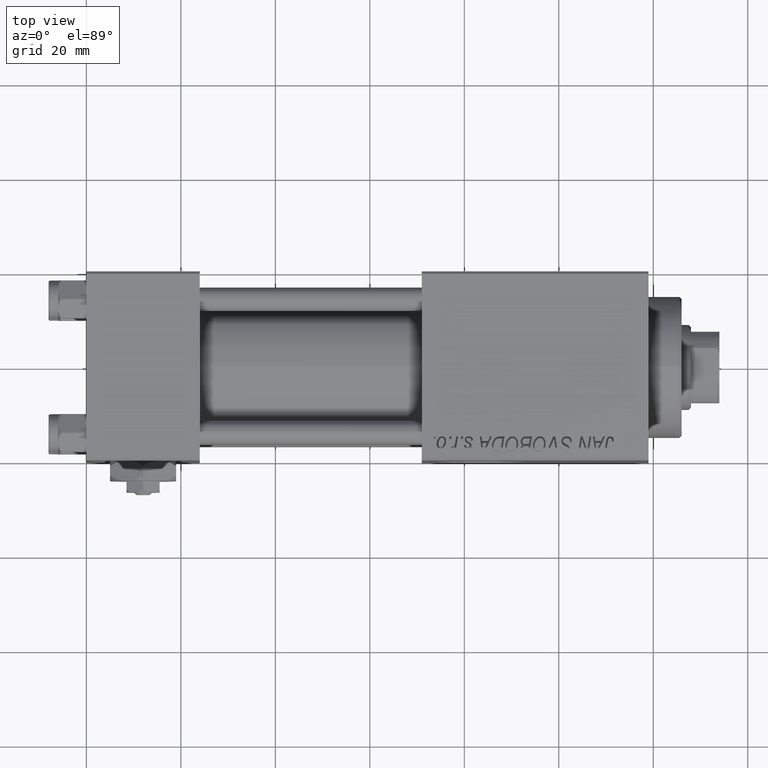
[diagram: clean part render]
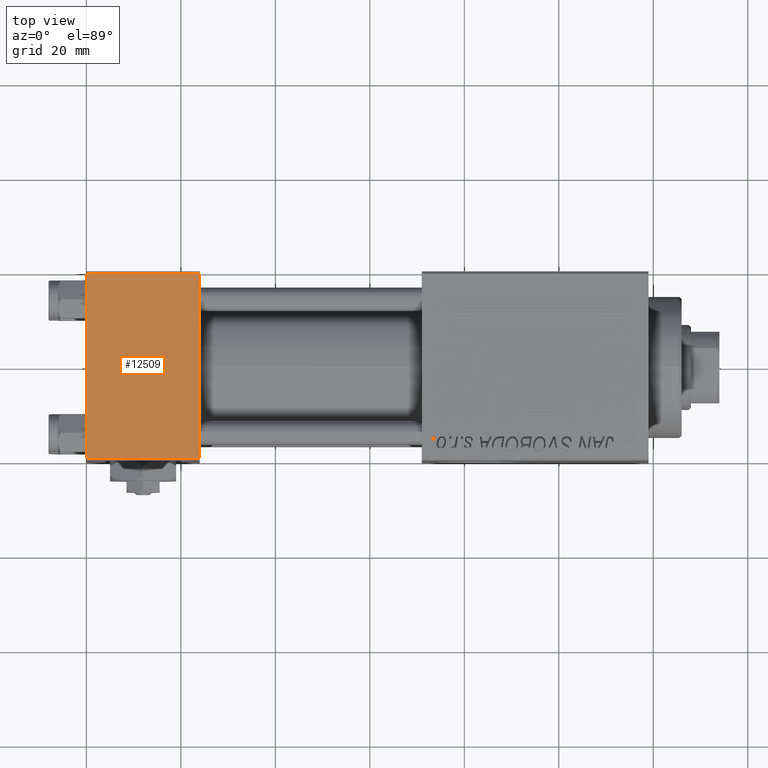
[diagram: same view with one face highlighted and labeled with its STEP entity id]
A machine part, top view. The second image highlights one B-rep face of the part: STEP entity #12509.
In plain terms, the highlighted planar face has unit normal (0, 0, -1).
Its self-contained STEP definition (entity closure, byte-faithful):
#2262 = EDGE_LOOP ( 'NONE', ( #49841, #5733, #41832, #40276 ) ) ;
#2332 = CARTESIAN_POINT ( 'NONE',  ( 0.000000000000000000, -19.49999999999999289, 19.99999999999998934 ) ) ;
#3083 = LINE ( 'NONE', #4118, #18218 ) ;
#3313 = DIRECTION ( 'NONE',  ( 1.000000000000000000, 0.000000000000000000, 0.000000000000000000 ) ) ;
#4118 = CARTESIAN_POINT ( 'NONE',  ( 0.000000000000000000, 20.00000000000000000, 20.00000000000000000 ) ) ;
#5733 = ORIENTED_EDGE ( 'NONE', *, *, #9080, .T. ) ;
#6414 = VECTOR ( 'NONE', #11171, 1000.000000000000000 ) ;
#9080 = EDGE_CURVE ( 'NONE', #18148, #39462, #43220, .T. ) ;
#11171 = DIRECTION ( 'NONE',  ( -1.000000000000000000, 0.000000000000000000, 0.000000000000000000 ) ) ;
#12509 = ADVANCED_FACE ( 'NONE', ( #51944 ), #15993, .F. ) ;
#14508 = VERTEX_POINT ( 'NONE', #40689 ) ;
#15993 = PLANE ( 'NONE',  #21387 ) ;
#18148 = VERTEX_POINT ( 'NONE', #2332 ) ;
#18218 = VECTOR ( 'NONE', #19879, 1000.000000000000000 ) ;
#18499 = CARTESIAN_POINT ( 'NONE',  ( 24.00000000000000000, 20.00000000000000000, 20.00000000000000000 ) ) ;
#19879 = DIRECTION ( 'NONE',  ( 0.000000000000000000, -1.000000000000000000, -2.602085213965210149E-16 ) ) ;
#20115 = VECTOR ( 'NONE', #49496, 1000.000000000000000 ) ;
#21387 = AXIS2_PLACEMENT_3D ( 'NONE', #48028, #40129, #22743 ) ;
#22743 = DIRECTION ( 'NONE',  ( 0.000000000000000000, 1.000000000000000000, 2.602085213965210149E-16 ) ) ;
#23056 = VECTOR ( 'NONE', #3313, 1000.000000000000000 ) ;
#26874 = EDGE_CURVE ( 'NONE', #36092, #14508, #34308, .T. ) ;
#29833 = EDGE_CURVE ( 'NONE', #14508, #18148, #3083, .T. ) ;
#30319 = LINE ( 'NONE', #18499, #20115 ) ;
#34308 = LINE ( 'NONE', #50317, #6414 ) ;
#36092 = VERTEX_POINT ( 'NONE', #43974 ) ;
#38867 = EDGE_CURVE ( 'NONE', #36092, #39462, #30319, .T. ) ;
#39462 = VERTEX_POINT ( 'NONE', #48077 ) ;
#40129 = DIRECTION ( 'NONE',  ( 0.000000000000000000, 2.602085213965210149E-16, -1.000000000000000000 ) ) ;
#40276 = ORIENTED_EDGE ( 'NONE', *, *, #26874, .T. ) ;
#40689 = CARTESIAN_POINT ( 'NONE',  ( 0.000000000000000000, 19.50000000000000000, 20.00000000000000000 ) ) ;
#41832 = ORIENTED_EDGE ( 'NONE', *, *, #38867, .F. ) ;
#43220 = LINE ( 'NONE', #47432, #23056 ) ;
#43974 = CARTESIAN_POINT ( 'NONE',  ( 24.00000000000000000, 19.50000000000000000, 20.00000000000000000 ) ) ;
#47432 = CARTESIAN_POINT ( 'NONE',  ( 24.00000000000000000, -19.49999999999999289, 19.99999999999998934 ) ) ;
#48028 = CARTESIAN_POINT ( 'NONE',  ( 24.00000000000000000, 20.00000000000000000, 20.00000000000000000 ) ) ;
#48077 = CARTESIAN_POINT ( 'NONE',  ( 24.00000000000000000, -19.49999999999999289, 19.99999999999998934 ) ) ;
#49496 = DIRECTION ( 'NONE',  ( 0.000000000000000000, -1.000000000000000000, -2.602085213965210149E-16 ) ) ;
#49841 = ORIENTED_EDGE ( 'NONE', *, *, #29833, .T. ) ;
#50317 = CARTESIAN_POINT ( 'NONE',  ( 0.000000000000000000, 19.50000000000000000, 20.00000000000000000 ) ) ;
#51944 = FACE_OUTER_BOUND ( 'NONE', #2262, .T. ) ;